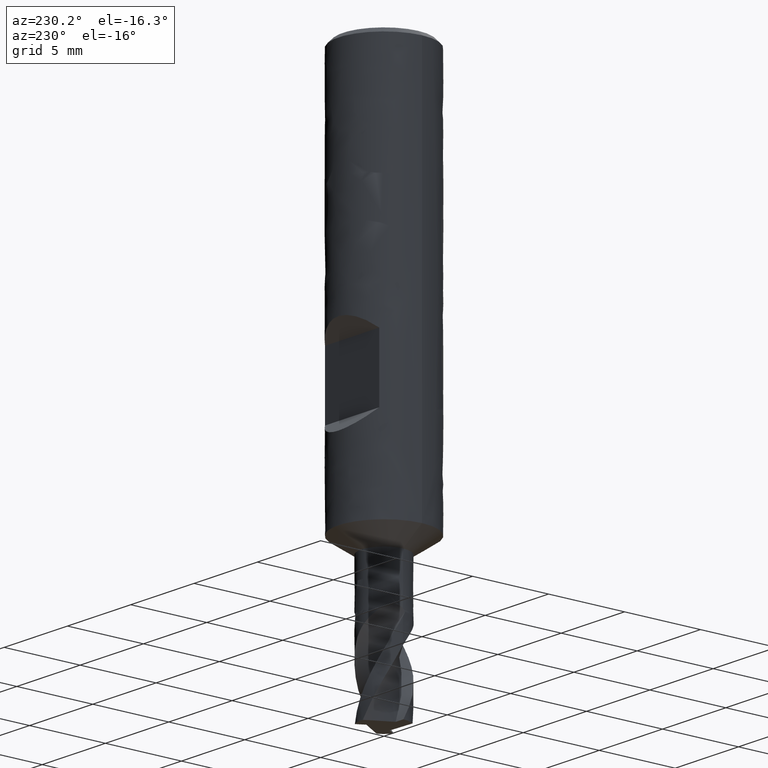
[diagram: clean part render]
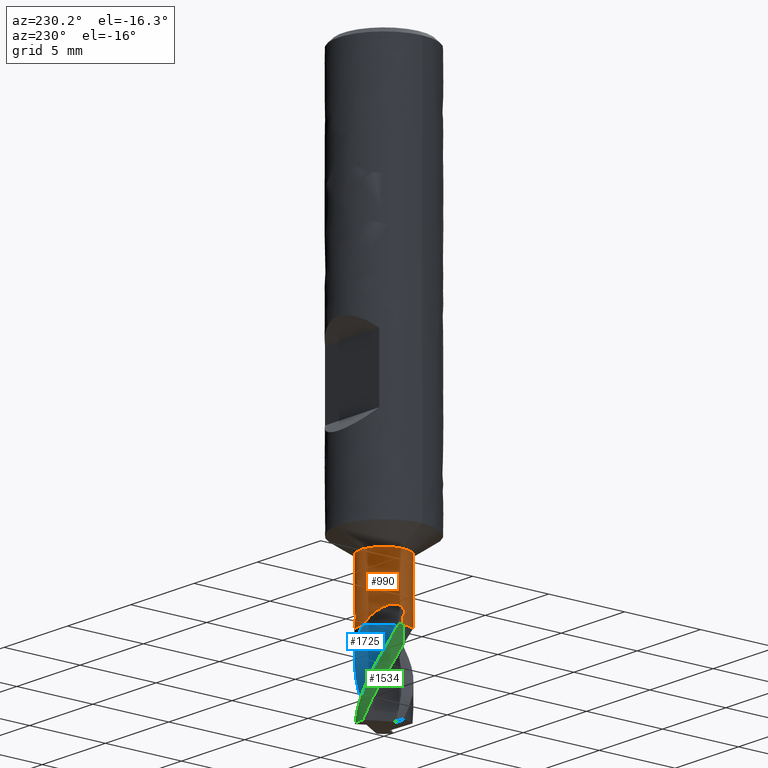
[diagram: same view with three faces highlighted in distinct colors, each labeled with its STEP entity id]
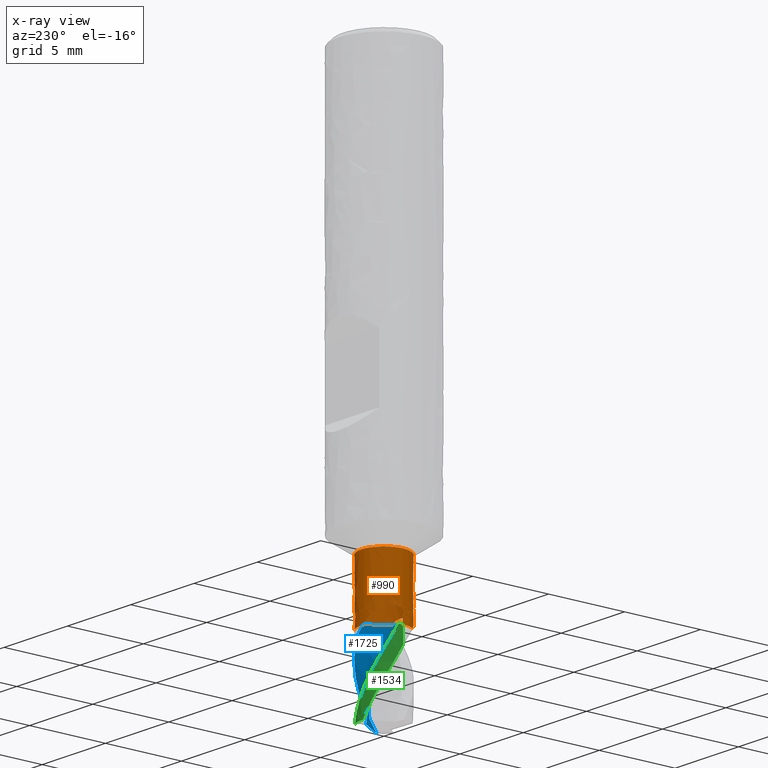
[diagram: x-ray of the same camera — body ghosted, the three highlighted faces saturated]
A machine part, auxiliary view with three faces highlighted in distinct colors.
The next image is the same camera in x-ray (body ghosted, the three faces saturated) — at least one of them is partly hidden behind the body in this view.
Their STEP definitions:

[orange] entity #990 — the highlighted face is a freeform B-spline surface patch.
#75 = VERTEX_POINT('', #76);
#76 = CARTESIAN_POINT('', (-1.5, 1.74512168878498E-15, -27.));
#90 = EDGE_CURVE('', #75, #75, #91, .T.);
#91 = CIRCLE('', #92, 1.5);
#92 = AXIS2_PLACEMENT_3D('', #93, #94, #95);
#93 = CARTESIAN_POINT('', (1.01233785329675E-31, 1.65327317884893E-15, -27.));
#94 = DIRECTION('', (3.74939945665464E-33, 6.12323399573677E-17, -1.));
#95 = DIRECTION('', (-1., 6.12323399573677E-17, 0.));
#420 = VERTEX_POINT('', #421);
#421 = CARTESIAN_POINT('', (1.36022073999418, -0.632297033434184, -31.));
#430 = VERTEX_POINT('', #431);
#431 = CARTESIAN_POINT('', (0.637851164146992, 1.35762509272492, -30.3327850160779));
#440 = EDGE_CURVE('', #441, #430, #443, .T.);
#441 = VERTEX_POINT('', #442);
#442 = CARTESIAN_POINT('', (1.08651737666349, 1.0341566565121, -30.));
#443 = B_SPLINE_CURVE_WITH_KNOTS('', 3, (#444, #445, #446, #447, #448, #449, #450, #451, #452, #453, #454, #455, #456, #457, #458, #459, #460, #461, #462, #463, #464, #465, #466, #467, #468), .UNSPECIFIED., .F., .U., (4, 3, 3, 3, 3, 3, 3, 3, 4), (0., 0.0877116151481286, 0.175259485587452, 0.262620735532497, 0.349794294163631, 0.436816400305931, 0.523762326491306, 0.610721918286676, 0.686112963349602), .UNSPECIFIED.);
#444 = CARTESIAN_POINT('', (1.08651737666204, 1.03415665651363, -30.));
#445 = CARTESIAN_POINT('', (1.06636022341526, 1.05533439310578, -30.0000824919297));
#446 = CARTESIAN_POINT('', (1.0455397520811, 1.07596047730442, -30.0016198085905));
#447 = CARTESIAN_POINT('', (1.02431242931333, 1.0958029235014, -30.0048589838145));
#448 = CARTESIAN_POINT('', (1.00312473484086, 1.11560832676434, -30.008092111974));
#449 = CARTESIAN_POINT('', (0.98143935348755, 1.13471635270034, -30.0130399754171));
#450 = CARTESIAN_POINT('', (0.959641017068353, 1.15286127455129, -30.0199116457774));
#451 = CARTESIAN_POINT('', (0.937889146842983, 1.17096751797102, -30.0267686682141));
#452 = CARTESIAN_POINT('', (0.915909639445699, 1.18820851736867, -30.0355856607205));
#453 = CARTESIAN_POINT('', (0.894217875179021, 1.20431490554187, -30.0464507556942));
#454 = CARTESIAN_POINT('', (0.872572714592337, 1.22038668993868, -30.05729250755));
#455 = CARTESIAN_POINT('', (0.851082909145497, 1.2354265361083, -30.0702483606421));
#456 = CARTESIAN_POINT('', (0.830331920041137, 1.24921931723809, -30.0851987604267));
#457 = CARTESIAN_POINT('', (0.809616983026368, 1.26298813524119, -30.1001231858758));
#458 = CARTESIAN_POINT('', (0.789504205322671, 1.27560681570253, -30.1171367749158));
#459 = CARTESIAN_POINT('', (0.770518965610291, 1.28697339663058, -30.1358928126313));
#460 = CARTESIAN_POINT('', (0.751550345752424, 1.29833002714851, -30.1546324311378));
#461 = CARTESIAN_POINT('', (0.733584874538814, 1.30851472348611, -30.1752285036799));
#462 = CARTESIAN_POINT('', (0.71697581525869, 1.31755291367525, -30.1971922275385));
#463 = CARTESIAN_POINT('', (0.700364145471824, 1.32659252442988, -30.2191594035162));
#464 = CARTESIAN_POINT('', (0.685010727015886, 1.3345423460515, -30.2426135279712));
#465 = CARTESIAN_POINT('', (0.671070159144094, 1.34151587448913, -30.2670522150202));
#466 = CARTESIAN_POINT('', (0.658984155071097, 1.34756168939964, -30.2882397357818));
#467 = CARTESIAN_POINT('', (0.647908428082305, 1.35289990199027, -30.3102448647238));
#468 = CARTESIAN_POINT('', (0.637851164146992, 1.35762509272492, -30.3327850160779));
#470 = EDGE_CURVE('', #441, #471, #473, .T.);
#471 = VERTEX_POINT('', #472);
#472 = CARTESIAN_POINT('', (1.08995851975236, 1.03052919668452, -30.));
#473 = CIRCLE('', #474, 1.5);
#474 = AXIS2_PLACEMENT_3D('', #475, #476, #477);
#475 = CARTESIAN_POINT('', (1.12481983699639E-31, 1.83697019872103E-15, -30.));
#476 = DIRECTION('', (3.74939945665464E-33, 6.12323399573677E-17, -1.));
#477 = DIRECTION('', (-1., 6.12323399573677E-17, 0.));
#479 = EDGE_CURVE('', #420, #471, #480, .T.);
#480 = B_SPLINE_CURVE_WITH_KNOTS('', 3, (#481, #482, #483, #484, #485, #486, #487, #488, #489, #490, #491, #492, #493, #494, #495, #496, #497, #498, #499, #500, #501, #502, #503, #504, #505, #506, #507, #508, #509, #510, #511, #512, #513, #514, #515, #516, #517, #518, #519, #520, #521, #522, #523, #524, #525, #526, #527, #528, #529), .UNSPECIFIED., .F., .U., (4, 3, 3, 3, 3, 3, 3, 3, 3, 3, 3, 3, 3, 3, 3, 3, 4), (5.93182391505246, 5.98055289472466, 6.178288634914, 6.37600428610593, 6.57366056951842, 6.77121452740443, 6.7885249363898, 6.98886393612993, 7.12168933289993, 7.25450969512237, 7.38731130558466, 7.52007420166525, 7.65276893078552, 7.78535173893475, 7.87336091418774, 7.93188912167936, 8.02089688242874), .UNSPECIFIED.);
#481 = CARTESIAN_POINT('', (1.36022073999418, -0.632297033434184, -31.));
#482 = CARTESIAN_POINT('', (1.36517837875582, -0.621631977758768, -30.9887967310919));
#483 = CARTESIAN_POINT('', (1.37003065050286, -0.610865258098542, -30.9776338202495));
#484 = CARTESIAN_POINT('', (1.37476943313114, -0.600007504726623, -30.9665213065918));
#485 = CARTESIAN_POINT('', (1.39399878488248, -0.555948180804144, -30.9214281991994));
#486 = CARTESIAN_POINT('', (1.41140573034488, -0.510278478969455, -30.8770518719947));
#487 = CARTESIAN_POINT('', (1.42669128626447, -0.463197553638868, -30.8335303993883));
#488 = CARTESIAN_POINT('', (1.44197528924531, -0.416121411503193, -30.7900133483537));
#489 = CARTESIAN_POINT('', (1.45516322077789, -0.367555194242264, -30.7472792113617));
#490 = CARTESIAN_POINT('', (1.46595812732796, -0.317752685151663, -30.7054859377749));
#491 = CARTESIAN_POINT('', (1.47674979250778, -0.267965130185117, -30.663705213391));
#492 = CARTESIAN_POINT('', (1.48516984239994, -0.216848158552868, -30.6227860110139));
#493 = CARTESIAN_POINT('', (1.49093051866733, -0.164700299047605, -30.5829324671953));
#494 = CARTESIAN_POINT('', (1.49668821266559, -0.112579436190699, -30.5430995553283));
#495 = CARTESIAN_POINT('', (1.49980085356092, -0.0593150114602786, -30.5042479724233));
#496 = CARTESIAN_POINT('', (1.49999074141514, -0.00527026269407737, -30.4666245046627));
#497 = CARTESIAN_POINT('', (1.50000738009175, -0.00053466177437959, -30.4633277971638));
#498 = CARTESIAN_POINT('', (1.50000161488123, 0.00420741153897672, -30.4600401776972));
#499 = CARTESIAN_POINT('', (1.49997326496345, 0.00895569064304992, -30.4567618374035));
#500 = CARTESIAN_POINT('', (1.49964516213371, 0.0639090708318443, -30.4188205377039));
#501 = CARTESIAN_POINT('', (1.49628571817081, 0.119780846295887, -30.3820599897132));
#502 = CARTESIAN_POINT('', (1.48962476981092, 0.176119405988582, -30.3468304236183));
#503 = CARTESIAN_POINT('', (1.48520853977126, 0.213472051026941, -30.3234731087636));
#504 = CARTESIAN_POINT('', (1.47933514669825, 0.251089404017757, -30.3007519298876));
#505 = CARTESIAN_POINT('', (1.47193183530087, 0.288819445723144, -30.27879920182));
#506 = CARTESIAN_POINT('', (1.4645288045149, 0.326548057327857, -30.2568473058377));
#507 = CARTESIAN_POINT('', (1.45558447042861, 0.36444645275563, -30.2356302002088));
#508 = CARTESIAN_POINT('', (1.44503330610292, 0.402341576590434, -30.2153134274195));
#509 = CARTESIAN_POINT('', (1.43448363140502, 0.440231350339895, -30.1949995229799));
#510 = CARTESIAN_POINT('', (1.42230865140967, 0.478184107579079, -30.1755495999786));
#511 = CARTESIAN_POINT('', (1.40845464032427, 0.515999540841869, -30.157174489405));
#512 = CARTESIAN_POINT('', (1.39460466796605, 0.553803950133549, -30.1388047355515));
#513 = CARTESIAN_POINT('', (1.37904719255905, 0.591549221974664, -30.1214703653326));
#514 = CARTESIAN_POINT('', (1.36174934152041, 0.628998196236473, -30.1054453340054));
#515 = CARTESIAN_POINT('', (1.34446037204402, 0.666427942364382, -30.0894285307125));
#516 = CARTESIAN_POINT('', (1.325387809889, 0.703655764129864, -30.0746783121668));
#517 = CARTESIAN_POINT('', (1.30453799494801, 0.740392206696584, -30.0615576661101));
#518 = CARTESIAN_POINT('', (1.28370576572086, 0.777097664021071, -30.0484480866229));
#519 = CARTESIAN_POINT('', (1.2610301308824, 0.813429010416731, -30.0369225185317));
#520 = CARTESIAN_POINT('', (1.23659472380273, 0.84901913350834, -30.0274680240726));
#521 = CARTESIAN_POINT('', (1.22037437024352, 0.872644047056103, -30.0211920802198));
#522 = CARTESIAN_POINT('', (1.20334502729133, 0.89599271250551, -30.0158170257832));
#523 = CARTESIAN_POINT('', (1.18556642464368, 0.9189299498643, -30.0115242048911));
#524 = CARTESIAN_POINT('', (1.17374322846349, 0.934183761567008, -30.0086693762761));
#525 = CARTESIAN_POINT('', (1.16157525269239, 0.949273489114972, -30.0062902348077));
#526 = CARTESIAN_POINT('', (1.14909123348789, 0.964152133805583, -30.0044485012575));
#527 = CARTESIAN_POINT('', (1.1301059502857, 0.986779084188211, -30.0016476538331));
#528 = CARTESIAN_POINT('', (1.11034179384798, 1.00897044480011, -30.0000834416149));
#529 = CARTESIAN_POINT('', (1.08995851975229, 1.0305291966846, -30.));
#548 = VERTEX_POINT('', #549);
#549 = CARTESIAN_POINT('', (0.958839185865557, 1.15352824657599, -31.));
#555 = EDGE_CURVE('', #430, #548, #556, .T.);
#556 = B_SPLINE_CURVE_WITH_KNOTS('', 3, (#557, #558, #559, #560, #561, #562, #563, #564, #565, #566, #567, #568, #569), .UNSPECIFIED., .F., .U., (4, 3, 3, 3, 4), (0., 0.197140888710732, 0.394258242975622, 0.591362302652624, 0.768501291972744), .UNSPECIFIED.);
#557 = CARTESIAN_POINT('', (0.637851164146992, 1.35762509272492, -30.3327850160779));
#558 = CARTESIAN_POINT('', (0.66736470847637, 1.34375878404406, -30.3898372491278));
#559 = CARTESIAN_POINT('', (0.696434465240904, 1.32892542771145, -30.4468939296165));
#560 = CARTESIAN_POINT('', (0.724987225946729, 1.31316165121209, -30.5039423679636));
#561 = CARTESIAN_POINT('', (0.753536578057792, 1.29739975657371, -30.5609839959358));
#562 = CARTESIAN_POINT('', (0.781572418885783, 1.28070597767198, -30.6180350378292));
#563 = CARTESIAN_POINT('', (0.809030497276849, 1.26311901833358, -30.6750789064091));
#564 = CARTESIAN_POINT('', (0.836486723756713, 1.24553324514836, -30.7321189276631));
#565 = CARTESIAN_POINT('', (0.863373912601014, 1.22704872508473, -30.7891656657986));
#566 = CARTESIAN_POINT('', (0.889625537170045, 1.2077112252583, -30.8462058369382));
#567 = CARTESIAN_POINT('', (0.913218081391558, 1.19033246004745, -30.8974682933425));
#568 = CARTESIAN_POINT('', (0.936304114691881, 1.17225991557649, -30.9487382774055));
#569 = CARTESIAN_POINT('', (0.958839185865557, 1.15352824657599, -31.));
#589 = VERTEX_POINT('', #590);
#590 = CARTESIAN_POINT('', (-0.132525076305562, 1.49413423230653, -31.));
#599 = VERTEX_POINT('', #600);
#600 = CARTESIAN_POINT('', (-1.49466340118848, -0.126417234377682, -30.3327850160779));
#609 = EDGE_CURVE('', #599, #610, #612, .T.);
#610 = VERTEX_POINT('', #611);
#611 = CARTESIAN_POINT('', (-1.5, 1.93845108511312E-15, -30.1573086454437));
#612 = B_SPLINE_CURVE_WITH_KNOTS('', 3, (#613, #614, #615, #616, #617, #618, #619, #620, #621, #622), .UNSPECIFIED., .F., .U., (4, 3, 3, 4), (0., 0.0882864205741478, 0.176734473270801, 0.217324273060061), .UNSPECIFIED.);
#613 = CARTESIAN_POINT('', (-1.49466340118848, -0.126417234377682, -30.3327850160779));
#614 = CARTESIAN_POINT('', (-1.49576008244812, -0.113450890432354, -30.3063894503898));
#615 = CARTESIAN_POINT('', (-1.49682856778338, -0.0988466259854903, -30.2807173592617));
#616 = CARTESIAN_POINT('', (-1.49772682723394, -0.082549082270865, -30.2562298548581));
#617 = CARTESIAN_POINT('', (-1.49862673119087, -0.0662217015035525, -30.2316975194682));
#618 = CARTESIAN_POINT('', (-1.49935901652126, -0.0481069721229595, -30.2082384510113));
#619 = CARTESIAN_POINT('', (-1.49973267225682, -0.0283180466382013, -30.1863869641262));
#620 = CARTESIAN_POINT('', (-1.49990414704948, -0.0192366875920535, -30.1763590726044));
#621 = CARTESIAN_POINT('', (-1.5, -0.00978820723709447, -30.166649421278));
#622 = CARTESIAN_POINT('', (-1.5, 1.95926776682484E-15, -30.1573086454437));
#624 = EDGE_CURVE('', #625, #610, #627, .T.);
#625 = VERTEX_POINT('', #626);
#626 = CARTESIAN_POINT('', (-1.438864624364, 0.423873321587765, -30.));
#627 = B_SPLINE_CURVE_WITH_KNOTS('', 3, (#628, #629, #630, #631, #632, #633, #634, #635, #636, #637, #638, #639, #640, #641, #642, #643, #644, #645, #646), .UNSPECIFIED., .F., .U., (4, 3, 3, 3, 3, 3, 4), (0., 0.0873715327168836, 0.174583582441547, 0.261628330211301, 0.348523752452851, 0.435323320112903, 0.468839241960868), .UNSPECIFIED.);
#628 = CARTESIAN_POINT('', (-1.43886462436399, 0.423873321587794, -30.));
#629 = CARTESIAN_POINT('', (-1.44709447200277, 0.395936586652479, -30.0000821720854));
#630 = CARTESIAN_POINT('', (-1.45452114556435, 0.367703833638553, -30.0016078787105));
#631 = CARTESIAN_POINT('', (-1.46107276887943, 0.339509004356293, -30.0048213094219));
#632 = CARTESIAN_POINT('', (-1.46761243323651, 0.31136564030074, -30.0080288745209));
#633 = CARTESIAN_POINT('', (-1.47330595498263, 0.283139922242644, -30.0129368912773));
#634 = CARTESIAN_POINT('', (-1.4781157273912, 0.255291786861227, -30.0197524667693));
#635 = CARTESIAN_POINT('', (-1.48291627304349, 0.227497073541379, -30.0265549677021));
#636 = CARTESIAN_POINT('', (-1.48685985291336, 0.199933631095757, -30.0353013153343));
#637 = CARTESIAN_POINT('', (-1.48996990067306, 0.173175330484241, -30.0460802901163));
#638 = CARTESIAN_POINT('', (-1.4930746131364, 0.146462933818396, -30.0568407735343));
#639 = CARTESIAN_POINT('', (-1.49536764414416, 0.120392064004039, -30.069700616884));
#640 = CARTESIAN_POINT('', (-1.49695235469523, 0.0955701196630325, -30.0845444422031));
#641 = CARTESIAN_POINT('', (-1.4985353171477, 0.0707755564777347, -30.0993718932573));
#642 = CARTESIAN_POINT('', (-1.49942463445355, 0.0470658658062925, -30.1162794067218));
#643 = CARTESIAN_POINT('', (-1.4997925537192, 0.0249458575409547, -30.1349261037));
#644 = CARTESIAN_POINT('', (-1.49993461840553, 0.0164046575294412, -30.1421261538327));
#645 = CARTESIAN_POINT('', (-1.5, 0.00808234557680908, -30.1495957541634));
#646 = CARTESIAN_POINT('', (-1.5, 1.95926776682484E-15, -30.1573086454437));
#648 = EDGE_CURVE('', #625, #649, #651, .T.);
#649 = VERTEX_POINT('', #650);
#650 = CARTESIAN_POINT('', (-1.43744372354654, 0.428667168834574, -30.));
#651 = CIRCLE('', #652, 1.5);
#652 = AXIS2_PLACEMENT_3D('', #653, #654, #655);
#653 = CARTESIAN_POINT('', (1.12481983699639E-31, 1.83697019872103E-15, -30.));
#654 = DIRECTION('', (3.74939945665464E-33, 6.12323399573677E-17, -1.));
#655 = DIRECTION('', (-1., 6.12323399573677E-17, 0.));
#657 = EDGE_CURVE('', #589, #649, #658, .T.);
#658 = B_SPLINE_CURVE_WITH_KNOTS('', 3, (#659, #660, #661, #662, #663, #664, #665, #666, #667, #668, #669, #670, #671, #672, #673, #674, #675, #676, #677, #678, #679, #680, #681, #682, #683, #684, #685, #686, #687, #688, #689, #690, #691, #692, #693, #694, #695, #696, #697, #698, #699, #700, #701, #702, #703, #704), .UNSPECIFIED., .F., .U., (4, 3, 3, 3, 3, 3, 3, 3, 3, 3, 3, 3, 3, 3, 3, 4), (5.93192917428079, 5.96404125952041, 6.1631267777314, 6.36230406094339, 6.56154907130675, 6.76084067006444, 6.96013880981722, 7.09247784788547, 7.22479050322806, 7.35706029425465, 7.48926449726281, 7.62137141338104, 7.75333659528979, 7.84106248077511, 7.92869879555475, 8.02099750391159), .UNSPECIFIED.);
#659 = CARTESIAN_POINT('', (-0.132525076305562, 1.49413423230653, -31.));
#660 = CARTESIAN_POINT('', (-0.140245205009723, 1.493449480814, -30.9926171176052));
#661 = CARTESIAN_POINT('', (-0.147980807411243, 1.49270302759867, -30.9852516444915));
#662 = CARTESIAN_POINT('', (-0.155726405785692, 1.49189452929545, -30.9779080581342));
#663 = CARTESIAN_POINT('', (-0.203746845901147, 1.48688207674161, -30.932379974718));
#664 = CARTESIAN_POINT('', (-0.252277275596175, 1.47946910201428, -30.8875738915931));
#665 = CARTESIAN_POINT('', (-0.300991614024742, 1.46949108479357, -30.8436279460139));
#666 = CARTESIAN_POINT('', (-0.34972840647887, 1.45950846837966, -30.7996617443168));
#667 = CARTESIAN_POINT('', (-0.398732059284495, 1.44694070069639, -30.7564844897652));
#668 = CARTESIAN_POINT('', (-0.44762900100852, 1.43165228929937, -30.7142552578536));
#669 = CARTESIAN_POINT('', (-0.496542569380524, 1.41635867931476, -30.6720116665454));
#670 = CARTESIAN_POINT('', (-0.545441833841273, 1.39831325141908, -30.6306362917491));
#671 = CARTESIAN_POINT('', (-0.593917179437388, 1.37741147954021, -30.5903348093258));
#672 = CARTESIAN_POINT('', (-0.642403859764103, 1.35650482031189, -30.5500239034225));
#673 = CARTESIAN_POINT('', (-0.690572818100659, 1.33269352726222, -30.5107025567543));
#674 = CARTESIAN_POINT('', (-0.737961933206138, 1.30591431002906, -30.4726215772786));
#675 = CARTESIAN_POINT('', (-0.785352603680588, 1.27913421386908, -30.4345393479383));
#676 = CARTESIAN_POINT('', (-0.832080586962659, 1.24931874502824, -30.3975998256939));
#677 = CARTESIAN_POINT('', (-0.877635278390454, 1.21645234930289, -30.3621332849714));
#678 = CARTESIAN_POINT('', (-0.907884753124784, 1.19462822590435, -30.3385825991062));
#679 = CARTESIAN_POINT('', (-0.93766407314366, 1.17142616314853, -30.3156454129066));
#680 = CARTESIAN_POINT('', (-0.966809861766023, 1.14685600281464, -30.293446581512));
#681 = CARTESIAN_POINT('', (-0.995949839968751, 1.12229074071643, -30.2712521756119));
#682 = CARTESIAN_POINT('', (-1.02449890819508, 1.09632187106248, -30.2497631246489));
#683 = CARTESIAN_POINT('', (-1.05227998429789, 1.06897466510953, -30.2291348861879));
#684 = CARTESIAN_POINT('', (-1.08005206037858, 1.04163631862111, -30.2085133304991));
#685 = CARTESIAN_POINT('', (-1.10710298344215, 1.01287434019167, -30.1887169495112));
#686 = CARTESIAN_POINT('', (-1.13323910919276, 0.982735529731169, -30.1699425788865));
#687 = CARTESIAN_POINT('', (-1.15936227494182, 0.952611664065242, -30.1511775178234));
#688 = CARTESIAN_POINT('', (-1.18462258055788, 0.921052453540942, -30.1333957772059));
#689 = CARTESIAN_POINT('', (-1.20880630805224, 0.888136988089739, -30.116851471638));
#690 = CARTESIAN_POINT('', (-1.23297223914088, 0.855245744586036, -30.1003193407514));
#691 = CARTESIAN_POINT('', (-1.25611984338192, 0.820921096481663, -30.0849825488275));
#692 = CARTESIAN_POINT('', (-1.27801131348549, 0.785294264975293, -30.0711756704775));
#693 = CARTESIAN_POINT('', (-1.29987929677777, 0.749705656606273, -30.0573836051822));
#694 = CARTESIAN_POINT('', (-1.32055731992279, 0.712710098899681, -30.0450761047566));
#695 = CARTESIAN_POINT('', (-1.33978011943956, 0.674528896011512, -30.03470024196));
#696 = CARTESIAN_POINT('', (-1.3525587712379, 0.649147353821275, -30.0278027274919));
#697 = CARTESIAN_POINT('', (-1.36472002813402, 0.623192477818258, -30.021746676166));
#698 = CARTESIAN_POINT('', (-1.37617919451841, 0.5967669767796, -30.0166996243329));
#699 = CARTESIAN_POINT('', (-1.38762666075736, 0.570368456953646, -30.0116577256879));
#700 = CARTESIAN_POINT('', (-1.39839641704519, 0.543445210993193, -30.0076126255564));
#701 = CARTESIAN_POINT('', (-1.40840037418953, 0.516147639714453, -30.0047647284416));
#702 = CARTESIAN_POINT('', (-1.41893655802155, 0.487397793527494, -30.0017653185979));
#703 = CARTESIAN_POINT('', (-1.42865144142971, 0.458150207572652, -30.0000865267614));
#704 = CARTESIAN_POINT('', (-1.43744372354651, 0.428667168834678, -30.));
#731 = VERTEX_POINT('', #732);
#732 = CARTESIAN_POINT('', (-1.5, 1.96275291108303E-15, -30.554187582078));
#748 = EDGE_CURVE('', #599, #731, #749, .T.);
#749 = B_SPLINE_CURVE_WITH_KNOTS('', 3, (#750, #751, #752, #753, #754, #755, #756), .UNSPECIFIED., .F., .U., (4, 3, 4), (0., 0.196717317091002, 0.255017488445792), .UNSPECIFIED.);
#750 = CARTESIAN_POINT('', (-1.49466340118848, -0.126417234377682, -30.3327850160779));
#751 = CARTESIAN_POINT('', (-1.49740569307743, -0.0939944136920894, -30.3897146682319));
#752 = CARTESIAN_POINT('', (-1.49909315264981, -0.0614728420411073, -30.4466487364571));
#753 = CARTESIAN_POINT('', (-1.4997209212686, -0.0289336881386932, -30.5035746016702));
#754 = CARTESIAN_POINT('', (-1.49990697005468, -0.0192902145680717, -30.5204454483528));
#755 = CARTESIAN_POINT('', (-1.5, -0.00964483826556952, -30.537316489663));
#756 = CARTESIAN_POINT('', (-1.5, 2.09459189525727E-15, -30.554187582078));
#776 = VERTEX_POINT('', #777);
#777 = CARTESIAN_POINT('', (-1.22769566368865, -0.86183719887231, -31.));
#786 = VERTEX_POINT('', #787);
#787 = CARTESIAN_POINT('', (0.856812237041487, -1.23120785834723, -30.3327850160779));
#796 = EDGE_CURVE('', #786, #797, #799, .T.);
#797 = VERTEX_POINT('', #798);
#798 = CARTESIAN_POINT('', (0.352347247700506, -1.45802997809986, -30.));
#799 = B_SPLINE_CURVE_WITH_KNOTS('', 3, (#800, #801, #802, #803, #804, #805, #806, #807, #808, #809, #810, #811, #812, #813, #814, #815, #816, #817, #818, #819, #820, #821, #822, #823, #824, #825, #826, #827, #828, #829, #830), .UNSPECIFIED., .F., .U., (4, 3, 3, 3, 3, 3, 3, 3, 3, 3, 4), (0., 0.0883169953595423, 0.176825850482241, 0.265466813793113, 0.324275181294038, 0.383042246268928, 0.441740210368148, 0.500350745622633, 0.55886691907766, 0.617291404635608, 0.686300846038629), .UNSPECIFIED.);
#800 = CARTESIAN_POINT('', (0.856812237041487, -1.23120785834723, -30.3327850160779));
#801 = CARTESIAN_POINT('', (0.846127695499721, -1.23864335827366, -30.3063803092473));
#802 = CARTESIAN_POINT('', (0.834009567218648, -1.24687396386799, -30.2806995534049));
#803 = CARTESIAN_POINT('', (0.820338786365209, -1.25580423457832, -30.2562043570223));
#804 = CARTESIAN_POINT('', (0.80663830711945, -1.26475390540091, -30.2316559472965));
#805 = CARTESIAN_POINT('', (0.791303773921801, -1.2744531207934, -30.2081823686125));
#806 = CARTESIAN_POINT('', (0.774337796277646, -1.28467932857031, -30.1863190560424));
#807 = CARTESIAN_POINT('', (0.757346495239985, -1.29492079997006, -30.1644231103237));
#808 = CARTESIAN_POINT('', (0.738608367609988, -1.3057532394921, -30.1440161217088));
#809 = CARTESIAN_POINT('', (0.718324942848315, -1.31681786002543, -30.1255992452448));
#810 = CARTESIAN_POINT('', (0.704868014437254, -1.32415862265118, -30.1133806682026));
#811 = CARTESIAN_POINT('', (0.690684782435241, -1.33162658557789, -30.1019878917442));
#812 = CARTESIAN_POINT('', (0.675885033551184, -1.33909649444001, -30.0915266663052));
#813 = CARTESIAN_POINT('', (0.661095678885493, -1.34656115700609, -30.0810727880356));
#814 = CARTESIAN_POINT('', (0.645644483822616, -1.35405057485098, -30.0715162470422));
#815 = CARTESIAN_POINT('', (0.629670302207475, -1.36143869142828, -30.0629156060954));
#816 = CARTESIAN_POINT('', (0.613714903731125, -1.36881812073618, -30.054325078157));
#817 = CARTESIAN_POINT('', (0.597190010166861, -1.37611833643557, -30.0466614653075));
#818 = CARTESIAN_POINT('', (0.580246912510008, -1.38322576628785, -30.0399351163428));
#819 = CARTESIAN_POINT('', (0.5633290510854, -1.39032260983801, -30.0332187860717));
#820 = CARTESIAN_POINT('', (0.545947736764768, -1.3972467889621, -30.0274171467351));
#821 = CARTESIAN_POINT('', (0.52825083821377, -1.40390564210222, -30.0225010738712));
#822 = CARTESIAN_POINT('', (0.510582431318493, -1.41055377462084, -30.0175929157872));
#823 = CARTESIAN_POINT('', (0.492556365230156, -1.41695387725001, -30.0135542849522));
#824 = CARTESIAN_POINT('', (0.474306368841675, -1.42303670665134, -30.0103298311574));
#825 = CARTESIAN_POINT('', (0.456084968030993, -1.42911000498111, -30.0071104296989));
#826 = CARTESIAN_POINT('', (0.437601879442226, -1.43488014831586, -30.0046949293103));
#827 = CARTESIAN_POINT('', (0.418971904924572, -1.44029946291905, -30.0030144458798));
#828 = CARTESIAN_POINT('', (0.39696667676487, -1.44670061253947, -30.0010295037496));
#829 = CARTESIAN_POINT('', (0.374706677443347, -1.45262660255314, -30.0000649027153));
#830 = CARTESIAN_POINT('', (0.352347247700553, -1.45802997809985, -30.));
#832 = EDGE_CURVE('', #797, #833, #835, .T.);
#833 = VERTEX_POINT('', #834);
#834 = CARTESIAN_POINT('', (0.347485203794181, -1.45919636551909, -30.));
#835 = CIRCLE('', #836, 1.5);
#836 = AXIS2_PLACEMENT_3D('', #837, #838, #839);
#837 = CARTESIAN_POINT('', (1.12481983699639E-31, 1.83697019872103E-15, -30.));
#838 = DIRECTION('', (3.74939945665464E-33, 6.12323399573677E-17, -1.));
#839 = DIRECTION('', (-1., 6.12323399573677E-17, 0.));
#841 = EDGE_CURVE('', #833, #776, #842, .T.);
#842 = B_SPLINE_CURVE_WITH_KNOTS('', 3, (#843, #844, #845, #846, #847, #848, #849, #850, #851, #852, #853, #854, #855, #856, #857, #858, #859, #860, #861, #862, #863, #864, #865, #866, #867, #868, #869, #870, #871, #872, #873, #874, #875, #876, #877, #878, #879, #880, #881, #882, #883, #884, #885, #886, #887, #888, #889, #890, #891, #892, #893, #894, #895, #896, #897), .UNSPECIFIED., .F., .U., (4, 3, 3, 3, 3, 3, 3, 3, 3, 3, 3, 3, 3, 3, 3, 3, 3, 3, 4), (0., 0.0873098819671224, 0.174429990955737, 0.261413096906244, 0.348299322303815, 0.365578036228584, 0.497316319210233, 0.628764562644849, 0.760006148242428, 0.891098992126548, 1.0220841087366, 1.15299117954395, 1.28384211922006, 1.41465336830612, 1.54543944364269, 1.67621293450469, 1.8069824777425, 2.00270210809832, 2.08926978266829), .UNSPECIFIED.);
#843 = CARTESIAN_POINT('', (0.34748520379416, -1.45919636551909, -30.));
#844 = CARTESIAN_POINT('', (0.319173701884916, -1.46593831488459, -30.0000818499138));
#845 = CARTESIAN_POINT('', (0.290633447088253, -1.47186001600037, -30.0015885278313));
#846 = CARTESIAN_POINT('', (0.262101548413032, -1.47692341653841, -30.0042893525185));
#847 = CARTESIAN_POINT('', (0.233631665437205, -1.4819758114883, -30.0069843068101));
#848 = CARTESIAN_POINT('', (0.205096167470002, -1.4861880813694, -30.0108742010377));
#849 = CARTESIAN_POINT('', (0.17666935499923, -1.4895596460042, -30.0157601599697));
#850 = CARTESIAN_POINT('', (0.148287245866384, -1.49292590859561, -30.0206384353575));
#851 = CARTESIAN_POINT('', (0.119954799713605, -1.49546192999319, -30.0265194265972));
#852 = CARTESIAN_POINT('', (0.0918023888354259, -1.49718813827926, -30.0332377135903));
#853 = CARTESIAN_POINT('', (0.0636813337142357, -1.49891242393895, -30.0399485178503));
#854 = CARTESIAN_POINT('', (0.0356926137499149, -1.49983214852481, -30.0475060285944));
#855 = CARTESIAN_POINT('', (0.00793626568327004, -1.49997900508207, -30.0557743640458));
#856 = CARTESIAN_POINT('', (0.00241647246351216, -1.50000820985451, -30.0574186546366));
#857 = CARTESIAN_POINT('', (-0.00309516364841277, -1.50000690057001, -30.0590914017925));
#858 = CARTESIAN_POINT('', (-0.00859796300276434, -1.49997535814166, -30.0607916564781));
#859 = CARTESIAN_POINT('', (-0.0505530148481235, -1.49973486886856, -30.0737549264232));
#860 = CARTESIAN_POINT('', (-0.0920548212416262, -1.49773281104133, -30.0883315876699));
#861 = CARTESIAN_POINT('', (-0.13285314324084, -1.49410509748512, -30.1041640604555));
#862 = CARTESIAN_POINT('', (-0.17356164224734, -1.49048537082819, -30.1199616759231));
#863 = CARTESIAN_POINT('', (-0.213671583816307, -1.4852394774655, -30.1370499350771));
#864 = CARTESIAN_POINT('', (-0.25299798949026, -1.47851006669345, -30.1551606450113));
#865 = CARTESIAN_POINT('', (-0.292262567712414, -1.47179123564038, -30.1732428819889));
#866 = CARTESIAN_POINT('', (-0.330826327928977, -1.4635805916852, -30.1923819529958));
#867 = CARTESIAN_POINT('', (-0.368546335872952, -1.45401980671331, -30.2123721875923));
#868 = CARTESIAN_POINT('', (-0.406223594115392, -1.44446985738877, -30.2323397663993));
#869 = CARTESIAN_POINT('', (-0.443123951505112, -1.43355682982458, -30.2531914285984));
#870 = CARTESIAN_POINT('', (-0.479133483622752, -1.42141869442875, -30.2747659689171));
#871 = CARTESIAN_POINT('', (-0.515113424432274, -1.40929053370582, -30.2963227800726));
#872 = CARTESIAN_POINT('', (-0.550257564721378, -1.39592151996963, -30.3186336499485));
#873 = CARTESIAN_POINT('', (-0.584473279359743, -1.3814452525216, -30.3415698022617));
#874 = CARTESIAN_POINT('', (-0.618668607003134, -1.36697761057196, -30.3644922883625));
#875 = CARTESIAN_POINT('', (-0.65198139478304, -1.35138528825484, -30.3880694988824));
#876 = CARTESIAN_POINT('', (-0.684335506590782, -1.33479770542923, -30.4121970145108));
#877 = CARTESIAN_POINT('', (-0.716675745405376, -1.31821723512842, -30.4363141845961));
#878 = CARTESIAN_POINT('', (-0.748095920309973, -1.30062312232495, -30.4610094636894));
#879 = CARTESIAN_POINT('', (-0.778533234320002, -1.28214117906697, -30.4861973302955));
#880 = CARTESIAN_POINT('', (-0.808961315878546, -1.26366484187673, -30.5113775567479));
#881 = CARTESIAN_POINT('', (-0.838439133946917, -1.24428188687807, -30.5370768090554));
#882 = CARTESIAN_POINT('', (-0.86691536330726, -1.2241150897125, -30.5632243068515));
#883 = CARTESIAN_POINT('', (-0.895386112607826, -1.20395217351209, -30.5893667727366));
#884 = CARTESIAN_POINT('', (-0.922883350574028, -1.18298631234789, -30.615981790646));
#885 = CARTESIAN_POINT('', (-0.94936918173482, -1.1613346446108, -30.6430051381426));
#886 = CARTESIAN_POINT('', (-0.975852464380657, -1.13968506023664, -30.6700258854033));
#887 = CARTESIAN_POINT('', (-1.00134776665189, -1.11733089035276, -30.6974785584354));
#888 = CARTESIAN_POINT('', (-1.02582624701551, -1.09438590585532, -30.7253087799815));
#889 = CARTESIAN_POINT('', (-1.05030398845384, -1.07144161399196, -30.7531381614241));
#890 = CARTESIAN_POINT('', (-1.07378469839424, -1.04788810562785, -30.7813674544984));
#891 = CARTESIAN_POINT('', (-1.09624759198798, -1.0238365187182, -30.8099509183374));
#892 = CARTESIAN_POINT('', (-1.12986726459702, -0.987839087031334, -30.8527311012329));
#893 = CARTESIAN_POINT('', (-1.16124956088221, -0.950678260443996, -30.8963637715545));
#894 = CARTESIAN_POINT('', (-1.19036532692678, -0.912704984346252, -30.9407095040775));
#895 = CARTESIAN_POINT('', (-1.20324336146639, -0.895909233191353, -30.9603238214285));
#896 = CARTESIAN_POINT('', (-1.21569107171452, -0.878937859565861, -30.9800972451408));
#897 = CARTESIAN_POINT('', (-1.22769566368865, -0.86183719887231, -31.));
#916 = VERTEX_POINT('', #917);
#917 = CARTESIAN_POINT('', (0.519565172584948, -1.40714321639155, -31.));
#923 = EDGE_CURVE('', #786, #916, #924, .T.);
#924 = B_SPLINE_CURVE_WITH_KNOTS('', 3, (#925, #926, #927, #928, #929, #930, #931, #932, #933, #934, #935, #936, #937), .UNSPECIFIED., .F., .U., (4, 3, 3, 3, 4), (0., 0.196932297197727, 0.393841761294688, 0.590738371735082, 0.768501381046993), .UNSPECIFIED.);
#925 = CARTESIAN_POINT('', (0.856812237041487, -1.23120785834723, -30.3327850160779));
#926 = CARTESIAN_POINT('', (0.83007520927412, -1.24981447494562, -30.3897768831039));
#927 = CARTESIAN_POINT('', (0.802723896670824, -1.26755506887632, -30.4467731821043));
#928 = CARTESIAN_POINT('', (0.774826397142138, -1.28438469871442, -30.5037612582408));
#929 = CARTESIAN_POINT('', (0.746932132158659, -1.30121237725942, -30.5607427269568));
#930 = CARTESIAN_POINT('', (0.71848867672431, -1.31713136285647, -30.6177335738656));
#931 = CARTESIAN_POINT('', (0.689561490804879, -1.3321054576868, -30.6747172817128));
#932 = CARTESIAN_POINT('', (0.660636193164993, -1.34707857505332, -30.7316972698352));
#933 = CARTESIAN_POINT('', (0.631217991138849, -1.36111156716611, -30.7886839531372));
#934 = CARTESIAN_POINT('', (0.601379541293025, -1.37416980294074, -30.8456640858407));
#935 = CARTESIAN_POINT('', (0.574440669029391, -1.38595909317997, -30.8971071240815));
#936 = CARTESIAN_POINT('', (0.547151649060864, -1.39695735027341, -30.9485576941254));
#937 = CARTESIAN_POINT('', (0.519565172584948, -1.40714321639155, -31.));
#957 = VERTEX_POINT('', #958);
#958 = CARTESIAN_POINT('', (-1.5, 1.99005104861445E-15, -31.));
#965 = EDGE_CURVE('', #731, #957, #966, .T.);
#966 = LINE('', #967, #968);
#967 = CARTESIAN_POINT('', (-1.5, 1.96275291108303E-15, -30.554187582078));
#968 = VECTOR('', #969, 0.445812417922042);
#969 = DIRECTION('', (0., 2.72981375314186E-17, -0.445812417922042));
#990 = ADVANCED_FACE('', (#991), #1036, .T.);
#991 = FACE_OUTER_BOUND('', #992, .T.);
#992 = EDGE_LOOP('', (#993, #1000, #1001, #1002, #1003, #1004, #1011, #1012, #1013, #1014, #1015, #1022, #1023, #1024, #1025, #1031, #1032, #1033, #1034, #1035));
#993 = ORIENTED_EDGE('', *, *, #994, .F.);
#994 = EDGE_CURVE('', #776, #957, #995, .T.);
#995 = CIRCLE('', #996, 1.5);
#996 = AXIS2_PLACEMENT_3D('', #997, #998, #999);
#997 = CARTESIAN_POINT('', (1.16231383156294E-31, 1.8982025386784E-15, -31.));
#998 = DIRECTION('', (3.74939945665464E-33, 6.12323399573677E-17, -1.));
#999 = DIRECTION('', (-1., 6.12323399573677E-17, 0.));
#1000 = ORIENTED_EDGE('', *, *, #841, .F.);
#1001 = ORIENTED_EDGE('', *, *, #832, .F.);
#1002 = ORIENTED_EDGE('', *, *, #796, .F.);
#1003 = ORIENTED_EDGE('', *, *, #923, .T.);
#1004 = ORIENTED_EDGE('', *, *, #1005, .F.);
#1005 = EDGE_CURVE('', #420, #916, #1006, .T.);
#1006 = CIRCLE('', #1007, 1.5);
#1007 = AXIS2_PLACEMENT_3D('', #1008, #1009, #1010);
#1008 = CARTESIAN_POINT('', (1.16231383156294E-31, 1.8982025386784E-15, -31.));
#1009 = DIRECTION('', (3.74939945665464E-33, 6.12323399573677E-17, -1.));
#1010 = DIRECTION('', (-1., 6.12323399573677E-17, 0.));
#1011 = ORIENTED_EDGE('', *, *, #479, .T.);
#1012 = ORIENTED_EDGE('', *, *, #470, .F.);
#1013 = ORIENTED_EDGE('', *, *, #440, .T.);
#1014 = ORIENTED_EDGE('', *, *, #555, .T.);
#1015 = ORIENTED_EDGE('', *, *, #1016, .F.);
#1016 = EDGE_CURVE('', #589, #548, #1017, .T.);
#1017 = CIRCLE('', #1018, 1.5);
#1018 = AXIS2_PLACEMENT_3D('', #1019, #1020, #1021);
#1019 = CARTESIAN_POINT('', (1.16231383156294E-31, 1.8982025386784E-15, -31.));
#1020 = DIRECTION('', (3.74939945665464E-33, 6.12323399573677E-17, -1.));
#1021 = DIRECTION('', (-1., 6.12323399573677E-17, 0.));
#1022 = ORIENTED_EDGE('', *, *, #657, .T.);
#1023 = ORIENTED_EDGE('', *, *, #648, .F.);
#1024 = ORIENTED_EDGE('', *, *, #624, .T.);
#1025 = ORIENTED_EDGE('', *, *, #1026, .F.);
#1026 = EDGE_CURVE('', #75, #610, #1027, .T.);
#1027 = LINE('', #1028, #1029);
#1028 = CARTESIAN_POINT('', (-1.5, 1.74512168878498E-15, -27.));
#1029 = VECTOR('', #1030, 3.15730864544366);
#1030 = DIRECTION('', (0., 1.93329396328142E-16, -3.15730864544366));
#1031 = ORIENTED_EDGE('', *, *, #90, .T.);
#1032 = ORIENTED_EDGE('', *, *, #1026, .T.);
#1033 = ORIENTED_EDGE('', *, *, #609, .F.);
#1034 = ORIENTED_EDGE('', *, *, #748, .T.);
#1035 = ORIENTED_EDGE('', *, *, #965, .T.);
#1036 = (
   BOUNDED_SURFACE ()
   B_SPLINE_SURFACE (2, 1, ((#1037, #1038), (#1039, #1040), (#1041, #1042), (#1043, #1044), (#1045, #1046), (#1047, #1048), (#1049, #1050), (#1051, #1052), (#1053, #1054)), .UNSPECIFIED., .T., .F., .U.)
   B_SPLINE_SURFACE_WITH_KNOTS ((3, 2, 2, 2, 3), (2, 2), (0., 2.35619449019235, 4.71238898038469, 7.06858347057704, 9.42477796076938), (0., 0.444444444444445), .UNSPECIFIED.)
   GEOMETRIC_REPRESENTATION_ITEM ()
   RATIONAL_B_SPLINE_SURFACE (((1., 1.), (0.707106781186548, 0.707106781186548), (1., 1.), (0.707106781186548, 0.707106781186548), (1., 1.), (0.707106781186548, 0.707106781186548), (1., 1.), (0.707106781186548, 0.707106781186548), (1., 1.)))
   REPRESENTATION_ITEM ('')
   SURFACE ()
);
#1037 = CARTESIAN_POINT('', (-1.5, 1.74512168878498E-15, -27.));
#1038 = CARTESIAN_POINT('', (-1.5, 1.99005104861445E-15, -31.));
#1039 = CARTESIAN_POINT('', (-1.5, 1.5, -27.));
#1040 = CARTESIAN_POINT('', (-1.5, 1.5, -31.));
#1041 = CARTESIAN_POINT('', (9.86076131526265E-32, 1.5, -27.));
#1042 = CARTESIAN_POINT('', (1.23259516440783E-31, 1.5, -31.));
#1043 = CARTESIAN_POINT('', (1.5, 1.5, -27.));
#1044 = CARTESIAN_POINT('', (1.5, 1.5, -31.));
#1045 = CARTESIAN_POINT('', (1.5, 1.74512168878498E-15, -27.));
#1046 = CARTESIAN_POINT('', (1.5, 1.99005104861445E-15, -31.));
#1047 = CARTESIAN_POINT('', (1.5, -1.5, -27.));
#1048 = CARTESIAN_POINT('', (1.5, -1.5, -31.));
#1049 = CARTESIAN_POINT('', (1.83697019872103E-16, -1.5, -27.));
#1050 = CARTESIAN_POINT('', (1.83697019872103E-16, -1.5, -31.));
#1051 = CARTESIAN_POINT('', (-1.5, -1.5, -27.));
#1052 = CARTESIAN_POINT('', (-1.5, -1.5, -31.));
#1053 = CARTESIAN_POINT('', (-1.5, 1.74512168878498E-15, -27.));
#1054 = CARTESIAN_POINT('', (-1.5, 1.99005104861445E-15, -31.));

[blue] entity #1725 — the highlighted face is a freeform B-spline surface patch.
#1132 = VERTEX_POINT('', #1133);
#1133 = CARTESIAN_POINT('', (-0.132525076305562, 1.49413423230653, -31.));
#1140 = EDGE_CURVE('', #1132, #1141, #1143, .T.);
#1141 = VERTEX_POINT('', #1142);
#1142 = CARTESIAN_POINT('', (-1.1573612570526, 0.198541176231883, -31.));
#1143 = LINE('', #1144, #1145);
#1144 = CARTESIAN_POINT('', (-0.132525076305564, 1.49413423230653, -31.));
#1145 = VECTOR('', #1146, 1.65192329250393);
#1146 = DIRECTION('', (-1.02483618074704, -1.29559305607465, 0.));
#1650 = EDGE_CURVE('', #1651, #1141, #1653, .T.);
#1651 = VERTEX_POINT('', #1652);
#1652 = CARTESIAN_POINT('', (0.439319811161221, 0.79555591685595, -36.));
#1653 = B_SPLINE_CURVE_WITH_KNOTS('', 3, (#1654, #1655, #1656, #1657, #1658, #1659, #1660, #1661, #1662, #1663, #1664, #1665, #1666, #1667, #1668, #1669, #1670, #1671, #1672, #1673, #1674), .UNSPECIFIED., .F., .U., (4, 1, 1, 1, 1, 1, 1, 1, 1, 1, 1, 1, 1, 1, 1, 1, 1, 1, 4), (0.0499999999999999, 0.55, 0.825, 1.1, 1.375, 1.65, 1.925, 2.2, 2.475, 2.75, 3.025, 3.3, 3.575, 3.85, 4.125, 4.4, 4.675, 4.95, 5.05), .UNSPECIFIED.);
#1654 = CARTESIAN_POINT('', (0.439319811161221, 0.79555591685595, -36.));
#1655 = CARTESIAN_POINT('', (0.38846908406327, 0.822878636759497, -35.8333333333333));
#1656 = CARTESIAN_POINT('', (0.305819683673272, 0.857874391751825, -35.575));
#1657 = CARTESIAN_POINT('', (0.188680070044586, 0.888751383341384, -35.225));
#1658 = CARTESIAN_POINT('', (0.0946806483373149, 0.903562452563821, -34.95));
#1659 = CARTESIAN_POINT('', (-0.000348073699782847, 0.908779066760201, -34.675));
#1660 = CARTESIAN_POINT('', (-0.0954600808758642, 0.904335754475649, -34.4));
#1661 = CARTESIAN_POINT('', (-0.189721830955154, 0.890292481250386, -34.125));
#1662 = CARTESIAN_POINT('', (-0.28215251655907, 0.866658497421658, -33.85));
#1663 = CARTESIAN_POINT('', (-0.371983309334873, 0.834050702200627, -33.575));
#1664 = CARTESIAN_POINT('', (-0.457726986955526, 0.791232186162608, -33.3));
#1665 = CARTESIAN_POINT('', (-0.535906816958979, 0.73602793325173, -33.025));
#1666 = CARTESIAN_POINT('', (-0.60618270970329, 0.671312453646513, -32.75));
#1667 = CARTESIAN_POINT('', (-0.662850835831019, 0.595272498326288, -32.475));
#1668 = CARTESIAN_POINT('', (-0.726262195407751, 0.527194276661663, -32.2));
#1669 = CARTESIAN_POINT('', (-0.801177249890618, 0.462819007420303, -31.925));
#1670 = CARTESIAN_POINT('', (-0.889469830834714, 0.396924628906012, -31.65));
#1671 = CARTESIAN_POINT('', (-0.992309260584349, 0.323881787363731, -31.375));
#1672 = CARTESIAN_POINT('', (-1.08461490359431, 0.256042577375157, -31.1583333333333));
#1673 = CARTESIAN_POINT('', (-1.14184118253107, 0.211013721739587, -31.0333333333333));
#1674 = CARTESIAN_POINT('', (-1.1573612570526, 0.198541176231883, -31.));
#1725 = ADVANCED_FACE('', (#1726), #1835, .T.);
#1726 = FACE_OUTER_BOUND('', #1727, .T.);
#1727 = EDGE_LOOP('', (#1728, #1729, #1828, #1834));
#1728 = ORIENTED_EDGE('', *, *, #1140, .F.);
#1729 = ORIENTED_EDGE('', *, *, #1730, .F.);
#1730 = EDGE_CURVE('', #1731, #1132, #1733, .T.);
#1731 = VERTEX_POINT('', #1732);
#1732 = CARTESIAN_POINT('', (1.35516285977925, -0.643065800268464, -36.));
#1733 = B_SPLINE_CURVE_WITH_KNOTS('', 3, (#1734, #1735, #1736, #1737, #1738, #1739, #1740, #1741, #1742, #1743, #1744, #1745, #1746, #1747, #1748, #1749, #1750, #1751, #1752, #1753, #1754, #1755, #1756, #1757, #1758, #1759, #1760, #1761, #1762, #1763, #1764, #1765, #1766, #1767, #1768, #1769, #1770, #1771, #1772, #1773, #1774, #1775, #1776, #1777, #1778, #1779, #1780, #1781, #1782, #1783, #1784, #1785, #1786, #1787, #1788, #1789, #1790, #1791, #1792, #1793, #1794, #1795, #1796, #1797, #1798, #1799, #1800, #1801, #1802, #1803, #1804, #1805, #1806, #1807, #1808, #1809, #1810, #1811, #1812, #1813, #1814, #1815, #1816, #1817, #1818, #1819, #1820, #1821, #1822, #1823, #1824, #1825, #1826, #1827), .UNSPECIFIED., .F., .U., (4, 3, 3, 3, 3, 3, 3, 3, 3, 3, 3, 3, 3, 3, 3, 3, 3, 3, 3, 3, 3, 3, 3, 3, 3, 3, 3, 3, 3, 3, 3, 4), (0., 0.442532734427091, 0.884771274311208, 1.17972834788145, 1.3109583568353, 1.36932813242417, 1.66559458316171, 1.96176102698724, 2.15903733743401, 2.45504305907387, 2.75094945797995, 2.94811205381504, 3.0795101949103, 3.21090249123528, 3.40800019671643, 3.60505973044536, 3.73640650669859, 3.8677720199228, 3.99917569235387, 4.05756086844672, 4.25465709933884, 4.3860332126647, 4.58314525158849, 4.78024687678338, 4.97735714707174, 5.17448675600856, 5.37162761952139, 5.56877535665107, 5.70016971297617, 5.73909404548315, 5.76506043707108, 5.93192917428079), .UNSPECIFIED.);
#1734 = CARTESIAN_POINT('', (1.3551628597795, -0.643065800267935, -36.));
#1735 = CARTESIAN_POINT('', (1.38637585611365, -0.577289182452383, -35.8717087126381));
#1736 = CARTESIAN_POINT('', (1.41283940434925, -0.509125696539645, -35.7433755593956));
#1737 = CARTESIAN_POINT('', (1.43421183009642, -0.439359108715716, -35.6151752799674));
#1738 = CARTESIAN_POINT('', (1.45557004751383, -0.369638901527213, -35.4870602277318));
#1739 = CARTESIAN_POINT('', (1.47186845032333, -0.298234473315245, -35.3589072632373));
#1740 = CARTESIAN_POINT('', (1.48287851110853, -0.225989648640225, -35.230883784062));
#1741 = CARTESIAN_POINT('', (1.49022182250307, -0.177804969683202, -35.1454967647042));
#1742 = CARTESIAN_POINT('', (1.49522133376664, -0.129212491248956, -35.0601051025218));
#1743 = CARTESIAN_POINT('', (1.49783998053872, -0.0804698247777057, -34.9747591844144));
#1744 = CARTESIAN_POINT('', (1.4990050485101, -0.0587836164083602, -34.9367877417843));
#1745 = CARTESIAN_POINT('', (1.4996994803016, -0.0370638593079372, -34.8988180823167));
#1746 = CARTESIAN_POINT('', (1.49992162658856, -0.0153334305334637, -34.8608546974764));
#1747 = CARTESIAN_POINT('', (1.50002043500152, -0.00566795644619165, -34.8439689693462));
#1748 = CARTESIAN_POINT('', (1.50002582824932, 0.00399998854800063, -34.8270838501038));
#1749 = CARTESIAN_POINT('', (1.49993772394604, 0.0136683679922434, -34.810199726097));
#1750 = CARTESIAN_POINT('', (1.49949053447231, 0.062741992713801, -34.7245012726966));
#1751 = CARTESIAN_POINT('', (1.49663172475541, 0.111843190593706, -34.6387971995814));
#1752 = CARTESIAN_POINT('', (1.49136621587683, 0.160707218697564, -34.5531395863139));
#1753 = CARTESIAN_POINT('', (1.48610248440936, 0.209554752390573, -34.4675108874017));
#1754 = CARTESIAN_POINT('', (1.47843000298162, 0.258197370965027, -34.3818791808467));
#1755 = CARTESIAN_POINT('', (1.46838014755985, 0.30636537378148, -34.2962935137936));
#1756 = CARTESIAN_POINT('', (1.46168594421757, 0.33845005479557, -34.2392849465661));
#1757 = CARTESIAN_POINT('', (1.45393559091752, 0.370333864726718, -34.1822772004076));
#1758 = CARTESIAN_POINT('', (1.4451464759914, 0.401934898870023, -34.1252829730562));
#1759 = CARTESIAN_POINT('', (1.43195873793814, 0.449351068074377, -34.03976526767));
#1760 = CARTESIAN_POINT('', (1.41642504475155, 0.496157423481714, -33.9542366528472));
#1761 = CARTESIAN_POINT('', (1.39860082451106, 0.54213995764658, -33.8687767722242));
#1762 = CARTESIAN_POINT('', (1.38078258506807, 0.588107062680634, -33.7833455670907));
#1763 = CARTESIAN_POINT('', (1.36065727657725, 0.63327908595302, -33.6979332388549));
#1764 = CARTESIAN_POINT('', (1.33839708524803, 0.677268958538344, -33.6125029736995));
#1765 = CARTESIAN_POINT('', (1.32356510756021, 0.70657943476137, -33.5555807411854));
#1766 = CARTESIAN_POINT('', (1.30777294583568, 0.735390124326599, -33.4986411507387));
#1767 = CARTESIAN_POINT('', (1.29113250186453, 0.763529215308132, -33.4416278249621));
#1768 = CARTESIAN_POINT('', (1.28004255148348, 0.782282388197864, -33.4036315458353));
#1769 = CARTESIAN_POINT('', (1.26857569046993, 0.800739249777827, -33.3655959939269));
#1770 = CARTESIAN_POINT('', (1.2567706473788, 0.818857460054602, -33.327507188034));
#1771 = CARTESIAN_POINT('', (1.24496612939224, 0.836974864408432, -33.2894200763836));
#1772 = CARTESIAN_POINT('', (1.23282675687514, 0.854750033453178, -33.2512710626281));
#1773 = CARTESIAN_POINT('', (1.22036355015556, 0.872188514858878, -33.2130770460311));
#1774 = CARTESIAN_POINT('', (1.2016678616253, 0.898347466093264, -33.1557833290863));
#1775 = CARTESIAN_POINT('', (1.18223574472655, 0.923760790069654, -33.0983803870201));
#1776 = CARTESIAN_POINT('', (1.16208781319666, 0.948447106811885, -33.040925742983));
#1777 = CARTESIAN_POINT('', (1.14194378370027, 0.973128642575244, -32.9834822261401));
#1778 = CARTESIAN_POINT('', (1.12106320134835, 0.99709911465731, -32.9259820357362));
#1779 = CARTESIAN_POINT('', (1.09967124915646, 1.02015839151511, -32.8683159981449));
#1780 = CARTESIAN_POINT('', (1.08541279687556, 1.03552817150337, -32.8298796535864));
#1781 = CARTESIAN_POINT('', (1.0709264417248, 1.05049604509131, -32.7913641412149));
#1782 = CARTESIAN_POINT('', (1.05628252738356, 1.06501982251234, -32.7527441743126));
#1783 = CARTESIAN_POINT('', (1.04163652404854, 1.07954567178929, -32.7141186981681));
#1784 = CARTESIAN_POINT('', (1.02683719405151, 1.09363060365672, -32.675383566446));
#1785 = CARTESIAN_POINT('', (1.01166061437463, 1.10749392834596, -32.6367194645404));
#1786 = CARTESIAN_POINT('', (0.996479626187255, 1.12136128006985, -32.5980441314416));
#1787 = CARTESIAN_POINT('', (0.980916518847296, 1.13500955706287, -32.5594356653473));
#1788 = CARTESIAN_POINT('', (0.964783670338923, 1.1485610429783, -32.5210346801389));
#1789 = CARTESIAN_POINT('', (0.957615535814108, 1.15458222851181, -32.5039723846791));
#1790 = CARTESIAN_POINT('', (0.950335179805052, 1.160583344061, -32.4869496238753));
#1791 = CARTESIAN_POINT('', (0.942930456034727, 1.16656853852748, -32.4699759304871));
#1792 = CARTESIAN_POINT('', (0.917933646166289, 1.18677331222935, -32.4126762661712));
#1793 = CARTESIAN_POINT('', (0.891521520043628, 1.2067937948344, -32.3559061017372));
#1794 = CARTESIAN_POINT('', (0.863652017111142, 1.22641966444601, -32.2997416916278));
#1795 = CARTESIAN_POINT('', (0.845075370774369, 1.23950144920943, -32.2623048422572));
#1796 = CARTESIAN_POINT('', (0.825844781687818, 1.25241234469205, -32.2251251359458));
#1797 = CARTESIAN_POINT('', (0.805952850418117, 1.26508497853026, -32.1882271956987));
#1798 = CARTESIAN_POINT('', (0.7761077055783, 1.28409854675928, -32.1328668409884));
#1799 = CARTESIAN_POINT('', (0.744763471914557, 1.30257943774316, -32.0781042816717));
#1800 = CARTESIAN_POINT('', (0.711997857379006, 1.32024961696177, -32.0239637553402));
#1801 = CARTESIAN_POINT('', (0.679233973900719, 1.33791886263794, -31.969826089335));
#1802 = CARTESIAN_POINT('', (0.645023412704551, 1.3547914989676, -31.9162732489359));
#1803 = CARTESIAN_POINT('', (0.609455535338476, 1.37060714664899, -31.8633454436543));
#1804 = CARTESIAN_POINT('', (0.573886097926288, 1.38642348802204, -31.8104153169012));
#1805 = CARTESIAN_POINT('', (0.536933687753657, 1.40119410625131, -31.7580673726053));
#1806 = CARTESIAN_POINT('', (0.498709001885065, 1.41466933643124, -31.7063544011939));
#1807 = CARTESIAN_POINT('', (0.460480565761545, 1.42814588867693, -31.654636356181));
#1808 = CARTESIAN_POINT('', (0.420941943789269, 1.44033953368665, -31.60351308901));
#1809 = CARTESIAN_POINT('', (0.380243713034462, 1.45100472731751, -31.5530383960729));
#1810 = CARTESIAN_POINT('', (0.339543158725451, 1.46167052984845, -31.5025608214213));
#1811 = CARTESIAN_POINT('', (0.297646588752822, 1.47081713868457, -31.4526817971732));
#1812 = CARTESIAN_POINT('', (0.254729772303813, 1.47821268534066, -31.4034706931118));
#1813 = CARTESIAN_POINT('', (0.211811459494549, 1.48560848985377, -31.3542578732303));
#1814 = CARTESIAN_POINT('', (0.167824596162979, 1.4912608053906, -31.3056639058031));
#1815 = CARTESIAN_POINT('', (0.122988464274144, 1.49494944317709, -31.2577609166687));
#1816 = CARTESIAN_POINT('', (0.0931062309022957, 1.49740783399978, -31.2258346946638));
#1817 = CARTESIAN_POINT('', (0.0628283381620951, 1.49899618826928, -31.1941950911209));
#1818 = CARTESIAN_POINT('', (0.0322253960307221, 1.49965380133238, -31.1628693399536));
#1819 = CARTESIAN_POINT('', (0.0231595645252498, 1.49984861296848, -31.1535893831231));
#1820 = CARTESIAN_POINT('', (0.0140642922973604, 1.49996180682896, -31.1443360207822));
#1821 = CARTESIAN_POINT('', (0.0049414988547453, 1.49999186050761, -31.1351100472393));
#1822 = CARTESIAN_POINT('', (-0.00114430947258545, 1.50001190929299, -31.1289554075482));
#1823 = CARTESIAN_POINT('', (-0.00724253315681358, 1.49999496048814, -31.1228127863644));
#1824 = CARTESIAN_POINT('', (-0.0133525918974258, 1.4999405682525, -31.1166824292502));
#1825 = CARTESIAN_POINT('', (-0.0526178776754061, 1.49959102551206, -31.0772866993183));
#1826 = CARTESIAN_POINT('', (-0.0924078394974578, 1.49769250689405, -31.0383647543594));
#1827 = CARTESIAN_POINT('', (-0.132525076305562, 1.49413423230653, -31.));
#1828 = ORIENTED_EDGE('', *, *, #1829, .T.);
#1829 = EDGE_CURVE('', #1731, #1651, #1830, .T.);
#1830 = LINE('', #1831, #1832);
#1831 = CARTESIAN_POINT('', (1.35516285977967, -0.643065800268196, -36.));
#1832 = VECTOR('', #1833, 1.70540345217311);
#1833 = DIRECTION('', (-0.915843048618451, 1.43862171712415, 0.));
#1834 = ORIENTED_EDGE('', *, *, #1650, .T.);
#1835 = B_SPLINE_SURFACE_WITH_KNOTS('', 3, 1, ((#1836, #1837), (#1838, #1839), (#1840, #1841), (#1842, #1843), (#1844, #1845), (#1846, #1847), (#1848, #1849), (#1850, #1851), (#1852, #1853), (#1854, #1855), (#1856, #1857), (#1858, #1859), (#1860, #1861), (#1862, #1863), (#1864, #1865), (#1866, #1867), (#1868, #1869), (#1870, #1871), (#1872, #1873), (#1874, #1875), (#1876, #1877)), .UNSPECIFIED., .F., .F., .U., (4, 1, 1, 1, 1, 1, 1, 1, 1, 1, 1, 1, 1, 1, 1, 1, 1, 1, 4), (2, 2), (0.0499999999999946, 0.55, 0.825, 1.1, 1.375, 1.65, 1.925, 2.2, 2.475, 2.75, 3.025, 3.3, 3.575, 3.85, 4.125, 4.4, 4.675, 4.95, 5.05000000000002), (0., 0.916186751322691), .UNSPECIFIED.);
#1836 = CARTESIAN_POINT('', (0.439319811161222, 0.795555916855949, -36.));
#1837 = CARTESIAN_POINT('', (1.37309677067468, -0.671236690166259, -36.));
#1838 = CARTESIAN_POINT('', (0.388469084063271, 0.822878636759496, -35.8333333333333));
#1839 = CARTESIAN_POINT('', (1.41472811501284, -0.583533953067616, -35.8333333333333));
#1840 = CARTESIAN_POINT('', (0.305819683673273, 0.857874391751824, -35.575));
#1841 = CARTESIAN_POINT('', (1.46658251990518, -0.441776654807979, -35.575));
#1842 = CARTESIAN_POINT('', (0.188680070044586, 0.888751383341384, -35.225));
#1843 = CARTESIAN_POINT('', (1.50862800113243, -0.242432190053764, -35.225));
#1844 = CARTESIAN_POINT('', (0.0946806483373149, 0.903562452563821, -34.95));
#1845 = CARTESIAN_POINT('', (1.52562739744864, -0.0833022807588196, -34.95));
#1846 = CARTESIAN_POINT('', (-0.000348073699782847, 0.908779066760201, -34.675));
#1847 = CARTESIAN_POINT('', (1.52642495169511, 0.0767523768541866, -34.675));
#1848 = CARTESIAN_POINT('', (-0.0954600808758642, 0.904335754475649, -34.4));
#1849 = CARTESIAN_POINT('', (1.51098998166579, 0.236137296671861, -34.4));
#1850 = CARTESIAN_POINT('', (-0.189721830955154, 0.890292481250386, -34.125));
#1851 = CARTESIAN_POINT('', (1.47950145322962, 0.393289456382537, -34.125));
#1852 = CARTESIAN_POINT('', (-0.28215251655907, 0.866658497421658, -33.85));
#1853 = CARTESIAN_POINT('', (1.43205710860612, 0.546562192956296, -33.85));
#1854 = CARTESIAN_POINT('', (-0.371983309334873, 0.834050702200627, -33.575));
#1855 = CARTESIAN_POINT('', (1.36975757641817, 0.694715828410293, -33.575));
#1856 = CARTESIAN_POINT('', (-0.457726986955526, 0.791232186162608, -33.3));
#1857 = CARTESIAN_POINT('', (1.29064989888347, 0.835148642128103, -33.3));
#1858 = CARTESIAN_POINT('', (-0.535906816958979, 0.73602793325173, -33.025));
#1859 = CARTESIAN_POINT('', (1.19137215060489, 0.961838555878849, -33.025));
#1860 = CARTESIAN_POINT('', (-0.60618270970329, 0.671312453646513, -32.75));
#1861 = CARTESIAN_POINT('', (1.07678108052733, 1.0744552513879, -32.75));
#1862 = CARTESIAN_POINT('', (-0.662850835831019, 0.595272498326288, -32.475));
#1863 = CARTESIAN_POINT('', (0.944309074781586, 1.16326617073416, -32.475));
#1864 = CARTESIAN_POINT('', (-0.726262195407751, 0.527194276661663, -32.2));
#1865 = CARTESIAN_POINT('', (0.824645027370728, 1.26407083427947, -32.2));
#1866 = CARTESIAN_POINT('', (-0.801177249890618, 0.462819007420303, -31.925));
#1867 = CARTESIAN_POINT('', (0.710236577161444, 1.38450833121488, -31.925));
#1868 = CARTESIAN_POINT('', (-0.889469830834714, 0.396924628906012, -31.65));
#1869 = CARTESIAN_POINT('', (0.59215530205245, 1.52728841293398, -31.65));
#1870 = CARTESIAN_POINT('', (-0.992309260584349, 0.323881787363731, -31.375));
#1871 = CARTESIAN_POINT('', (0.460847708569677, 1.6939033473504, -31.375));
#1872 = CARTESIAN_POINT('', (-1.08461490359431, 0.256042577375155, -31.1583333333333));
#1873 = CARTESIAN_POINT('', (0.339163399502922, 1.84326106930331, -31.1583333333333));
#1874 = CARTESIAN_POINT('', (-1.14184118253107, 0.211013721739582, -31.0333333333333));
#1875 = CARTESIAN_POINT('', (0.258733204061207, 1.93560864537543, -31.0333333333333));
#1876 = CARTESIAN_POINT('', (-1.15736125705261, 0.198541176231876, -31.));
#1877 = CARTESIAN_POINT('', (0.236482584455221, 1.96063197302013, -31.));

[green] entity #1534 — the highlighted face is a freeform B-spline surface patch.
#1149 = VERTEX_POINT('', #1150);
#1150 = CARTESIAN_POINT('', (-1.47840435845051, 0.25361496981557, -31.));
#1156 = EDGE_CURVE('', #1157, #1149, #1159, .T.);
#1157 = VERTEX_POINT('', #1158);
#1158 = CARTESIAN_POINT('', (-1.5, 1.99005104861445E-15, -31.));
#1159 = CIRCLE('', #1160, 1.5);
#1160 = AXIS2_PLACEMENT_3D('', #1161, #1162, #1163);
#1161 = CARTESIAN_POINT('', (1.16231383156294E-31, 1.8982025386784E-15, -31.));
#1162 = DIRECTION('', (3.74939945665464E-33, 6.12323399573677E-17, -1.));
#1163 = DIRECTION('', (-1., 6.12323399573677E-17, 0.));
#1360 = VERTEX_POINT('', #1361);
#1361 = CARTESIAN_POINT('', (-1.5, 2.05668055087664E-15, -32.0881423494282));
#1389 = EDGE_CURVE('', #1390, #1360, #1392, .T.);
#1390 = VERTEX_POINT('', #1391);
#1391 = CARTESIAN_POINT('', (-0.120670110552751, 1.49513836296819, -36.));
#1392 = B_SPLINE_CURVE_WITH_KNOTS('', 3, (#1393, #1394, #1395, #1396, #1397, #1398, #1399, #1400, #1401, #1402, #1403, #1404, #1405, #1406, #1407, #1408, #1409, #1410, #1411, #1412, #1413, #1414, #1415, #1416, #1417, #1418, #1419, #1420, #1421, #1422, #1423, #1424, #1425, #1426, #1427, #1428, #1429, #1430, #1431, #1432, #1433, #1434, #1435, #1436, #1437, #1438, #1439, #1440, #1441, #1442, #1443, #1444, #1445, #1446, #1447, #1448, #1449, #1450, #1451, #1452, #1453), .UNSPECIFIED., .F., .U., (4, 3, 3, 3, 3, 3, 3, 3, 3, 3, 3, 3, 3, 3, 3, 3, 3, 3, 3, 3, 4), (0., 0.444663401622154, 0.889003016504776, 1.33303082987607, 1.6287943444351, 1.92447035955844, 2.22005520713324, 2.51555824280497, 2.81095995467019, 3.00789168476608, 3.13919357265407, 3.3360902672323, 3.42364070293419, 3.62049877958879, 3.75176099826033, 3.88305486059799, 4.01437827882142, 4.07274446369322, 4.26963533335835, 4.40090088937635, 4.50553107559148), .UNSPECIFIED.);
#1393 = CARTESIAN_POINT('', (-0.120670110552752, 1.49513836296819, -36.));
#1394 = CARTESIAN_POINT('', (-0.193590237763001, 1.48925310175764, -35.8710910271741));
#1395 = CARTESIAN_POINT('', (-0.266200022021859, 1.47800988325191, -35.7421394036789));
#1396 = CARTESIAN_POINT('', (-0.337637420658066, 1.46150640510789, -35.6133223325581));
#1397 = CARTESIAN_POINT('', (-0.409022801335745, 1.44501494416015, -35.4845990610603));
#1398 = CARTESIAN_POINT('', (-0.479323092583959, 1.42325015298485, -35.355837101401));
#1399 = CARTESIAN_POINT('', (-0.547681339401451, 1.3964401707454, -35.227206248072));
#1400 = CARTESIAN_POINT('', (-0.615991617944328, 1.36964900157753, -35.0986656574455));
#1401 = CARTESIAN_POINT('', (-0.682452202473821, 1.33778433555247, -34.97008615873));
#1402 = CARTESIAN_POINT('', (-0.74624451053817, 1.30119911254659, -34.8416384758859));
#1403 = CARTESIAN_POINT('', (-0.788736076757169, 1.27682997662469, -34.7560804613406));
#1404 = CARTESIAN_POINT('', (-0.830075925188945, 1.25035206134823, -34.6705172995122));
#1405 = CARTESIAN_POINT('', (-0.870035494344714, 1.22189943881661, -34.5849997987173));
#1406 = CARTESIAN_POINT('', (-0.909983241759197, 1.19345523378172, -34.4995075976388));
#1407 = CARTESIAN_POINT('', (-0.948577565638626, 1.16301887690271, -34.4140118084196));
#1408 = CARTESIAN_POINT('', (-0.985602161090083, 1.13074682403028, -34.3285629599554));
#1409 = CARTESIAN_POINT('', (-1.02261534052729, 1.09848472179231, -34.2431404584441));
#1410 = CARTESIAN_POINT('', (-1.05807780545247, 1.0643720608363, -34.1577108235263));
#1411 = CARTESIAN_POINT('', (-1.0917869396806, 1.02859189105441, -34.0723217365346));
#1412 = CARTESIAN_POINT('', (-1.12548674390265, 0.992821624499308, -33.9869562835138));
#1413 = CARTESIAN_POINT('', (-1.1574664150462, 0.955352266355034, -33.9015892678169));
#1414 = CARTESIAN_POINT('', (-1.18755889105058, 0.9163535782037, -33.8162898272919));
#1415 = CARTESIAN_POINT('', (-1.21764104877105, 0.8773682621503, -33.7310196347373));
#1416 = CARTESIAN_POINT('', (-1.24583138027679, 0.836853175400787, -33.6457471572561));
#1417 = CARTESIAN_POINT('', (-1.27190375986425, 0.795148304181796, -33.5604433967384));
#1418 = CARTESIAN_POINT('', (-1.28928510402592, 0.767345444168821, -33.5035750155893));
#1419 = CARTESIAN_POINT('', (-1.30572651287764, 0.739011552401302, -33.4466687835935));
#1420 = CARTESIAN_POINT('', (-1.32114303422647, 0.710338710134029, -33.3896659598906));
#1421 = CARTESIAN_POINT('', (-1.33142181640536, 0.691221433710496, -33.3516600054236));
#1422 = CARTESIAN_POINT('', (-1.34124678364857, 0.671952424108341, -33.3136046296466));
#1423 = CARTESIAN_POINT('', (-1.35060793695881, 0.652578118407188, -33.2754918852796));
#1424 = CARTESIAN_POINT('', (-1.36464566462499, 0.623524943211726, -33.2183390635809));
#1425 = CARTESIAN_POINT('', (-1.37765452670011, 0.594211145161942, -33.1610567822944));
#1426 = CARTESIAN_POINT('', (-1.38967000800899, 0.564639060675306, -33.1037095082256));
#1427 = CARTESIAN_POINT('', (-1.39501271132869, 0.551489785178509, -33.0782099494758));
#1428 = CARTESIAN_POINT('', (-1.40015910812798, 0.538288583778973, -33.0526952411081));
#1429 = CARTESIAN_POINT('', (-1.40511078062207, 0.525036850306366, -33.0271698043681));
#1430 = CARTESIAN_POINT('', (-1.41624466837027, 0.495240188041433, -32.969775591054));
#1431 = CARTESIAN_POINT('', (-1.42639068102894, 0.465181419176161, -32.9123163234256));
#1432 = CARTESIAN_POINT('', (-1.43549155631157, 0.435159731315069, -32.8546815024619));
#1433 = CARTESIAN_POINT('', (-1.44155989296176, 0.415141688754258, -32.8162514080456));
#1434 = CARTESIAN_POINT('', (-1.44716523426041, 0.395140252214016, -32.7777365814183));
#1435 = CARTESIAN_POINT('', (-1.45231028688109, 0.375226372499832, -32.7391181308698));
#1436 = CARTESIAN_POINT('', (-1.45745657983069, 0.355307692103721, -32.7004903704881));
#1437 = CARTESIAN_POINT('', (-1.46215754663097, 0.335438106758956, -32.6617757779154));
#1438 = CARTESIAN_POINT('', (-1.46648312677947, 0.315320850676125, -32.623150301918));
#1439 = CARTESIAN_POINT('', (-1.47080968067, 0.29519906594807, -32.5845161308443));
#1440 = CARTESIAN_POINT('', (-1.47476050557143, 0.27482453059465, -32.5459666002618));
#1441 = CARTESIAN_POINT('', (-1.47834069980057, 0.253985777777719, -32.5076373287571));
#1442 = CARTESIAN_POINT('', (-1.47993190326665, 0.244724074755784, -32.4906020324108));
#1443 = CARTESIAN_POINT('', (-1.48144935542637, 0.235370460923123, -32.4736092768748));
#1444 = CARTESIAN_POINT('', (-1.4828896155044, 0.225916772793009, -32.4566662598888));
#1445 = CARTESIAN_POINT('', (-1.48774814891603, 0.194025963387363, -32.3995111561851));
#1446 = CARTESIAN_POINT('', (-1.4917259278232, 0.161007329812452, -32.3428873168079));
#1447 = CARTESIAN_POINT('', (-1.49461989914819, 0.126930520641261, -32.2868718639622));
#1448 = CARTESIAN_POINT('', (-1.49654928650739, 0.104211786599487, -32.249526812991));
#1449 = CARTESIAN_POINT('', (-1.4979975586902, 0.081013941916702, -32.2124406946045));
#1450 = CARTESIAN_POINT('', (-1.49890256537741, 0.0573681052940601, -32.1756361892092));
#1451 = CARTESIAN_POINT('', (-1.499623935256, 0.0385202950680463, -32.1462997633418));
#1452 = CARTESIAN_POINT('', (-1.5, 0.0193872125921994, -32.1171341102473));
#1453 = CARTESIAN_POINT('', (-1.5, 2.08280982323354E-15, -32.0881423494282));
#1509 = EDGE_CURVE('', #1157, #1360, #1510, .T.);
#1510 = LINE('', #1511, #1512);
#1511 = CARTESIAN_POINT('', (-1.5, 1.99005104861445E-15, -31.));
#1512 = VECTOR('', #1513, 1.08814234942817);
#1513 = DIRECTION('', (0., 6.66295022621945E-17, -1.08814234942817));
#1534 = ADVANCED_FACE('', (#1535), #1634, .T.);
#1535 = FACE_OUTER_BOUND('', #1536, .T.);
#1536 = EDGE_LOOP('', (#1537, #1538, #1625, #1632, #1633));
#1537 = ORIENTED_EDGE('', *, *, #1156, .T.);
#1538 = ORIENTED_EDGE('', *, *, #1539, .F.);
#1539 = EDGE_CURVE('', #1540, #1149, #1542, .T.);
#1540 = VERTEX_POINT('', #1541);
#1541 = CARTESIAN_POINT('', (0.72511250077922, 1.31309248006898, -36.));
#1542 = B_SPLINE_CURVE_WITH_KNOTS('', 3, (#1543, #1544, #1545, #1546, #1547, #1548, #1549, #1550, #1551, #1552, #1553, #1554, #1555, #1556, #1557, #1558, #1559, #1560, #1561, #1562, #1563, #1564, #1565, #1566, #1567, #1568, #1569, #1570, #1571, #1572, #1573, #1574, #1575, #1576, #1577, #1578, #1579, #1580, #1581, #1582, #1583, #1584, #1585, #1586, #1587, #1588, #1589, #1590, #1591, #1592, #1593, #1594, #1595, #1596, #1597, #1598, #1599, #1600, #1601, #1602, #1603, #1604, #1605, #1606, #1607, #1608, #1609, #1610, #1611, #1612, #1613, #1614, #1615, #1616, #1617, #1618, #1619, #1620, #1621, #1622, #1623, #1624), .UNSPECIFIED., .F., .U., (4, 3, 3, 3, 3, 3, 3, 3, 3, 3, 3, 3, 3, 3, 3, 3, 3, 3, 3, 3, 3, 3, 3, 3, 3, 3, 3, 4), (0., 0.442637829227381, 0.884985849190556, 1.3270371960813, 1.5237804963899, 1.6552867359781, 1.95151506696973, 2.14881705565567, 2.44487917171649, 2.74084131122707, 2.93802953318183, 3.13516407282316, 3.33228802338736, 3.46368778999524, 3.66074091783738, 3.74831311937546, 3.87968630491989, 4.01109102271852, 4.0694762673739, 4.26655996009097, 4.39793478406301, 4.59501652181126, 4.79205384426317, 4.98905101909661, 5.18600844268064, 5.38292141610194, 5.57978896795514, 5.75875307073869), .UNSPECIFIED.);
#1543 = CARTESIAN_POINT('', (0.72511250077922, 1.31309248006898, -36.));
#1544 = CARTESIAN_POINT('', (0.661013017277532, 1.34848932948063, -35.8719057980053));
#1545 = CARTESIAN_POINT('', (0.594274107218065, 1.37920263851257, -35.7437263673631));
#1546 = CARTESIAN_POINT('', (0.525695010817062, 1.40486467519195, -35.6156319774453));
#1547 = CARTESIAN_POINT('', (0.457160815362512, 1.43050991010819, -35.4876214550563));
#1548 = CARTESIAN_POINT('', (0.386700591659973, 1.45114342977675, -35.3595264790346));
#1549 = CARTESIAN_POINT('', (0.315158818702991, 1.46651795726976, -35.2315159072471));
#1550 = CARTESIAN_POINT('', (0.243665027237125, 1.48188217340587, -35.1035911893302));
#1551 = CARTESIAN_POINT('', (0.170998325035735, 1.49201441717192, -34.9755822469643));
#1552 = CARTESIAN_POINT('', (0.0980284018060115, 1.49679338334967, -34.8476576340241));
#1553 = CARTESIAN_POINT('', (0.0655517593967996, 1.4989203525004, -34.7907223691107));
#1554 = CARTESIAN_POINT('', (0.0330016956383647, 1.49999004268688, -34.7337796412079));
#1555 = CARTESIAN_POINT('', (0.000455728499782367, 1.49999993077052, -34.6768442338067));
#1556 = CARTESIAN_POINT('', (-0.0212984951278711, 1.50000654011729, -34.6387877342206));
#1557 = CARTESIAN_POINT('', (-0.0430540705336066, 1.4995397943753, -34.6007289835852));
#1558 = CARTESIAN_POINT('', (-0.0647880309801615, 1.49860018385216, -34.5626725052216));
#1559 = CARTESIAN_POINT('', (-0.113745516564739, 1.49648363593835, -34.4769472415049));
#1560 = CARTESIAN_POINT('', (-0.162614522404237, 1.49196444810864, -34.3911971888306));
#1561 = CARTESIAN_POINT('', (-0.21113072285249, 1.48506694053433, -34.3054724042438));
#1562 = CARTESIAN_POINT('', (-0.243444792205283, 1.48047287636486, -34.2483756693636));
#1563 = CARTESIAN_POINT('', (-0.275612502803177, 1.47482302645952, -34.1912711227933));
#1564 = CARTESIAN_POINT('', (-0.307556658498114, 1.46813109149472, -34.1341735697714));
#1565 = CARTESIAN_POINT('', (-0.355490561211449, 1.45808948755847, -34.0484956580478));
#1566 = CARTESIAN_POINT('', (-0.402946529951588, 1.44569461434545, -33.9627926396937));
#1567 = CARTESIAN_POINT('', (-0.449671733627653, 1.43101199574858, -33.877116660278));
#1568 = CARTESIAN_POINT('', (-0.496381158774756, 1.41633433529217, -33.7914696125911));
#1569 = CARTESIAN_POINT('', (-0.542379074114235, 1.39936487110355, -33.7057937932791));
#1570 = CARTESIAN_POINT('', (-0.58742870862678, 1.38019111440448, -33.6201461524718));
#1571 = CARTESIAN_POINT('', (-0.617443552227823, 1.3674163757236, -33.5630824144094));
#1572 = CARTESIAN_POINT('', (-0.64705736389462, 1.35365470292169, -33.5060187644648));
#1573 = CARTESIAN_POINT('', (-0.67617807593223, 1.33894854629616, -33.4489567974979));
#1574 = CARTESIAN_POINT('', (-0.70529086017793, 1.32424639325918, -33.3919103650206));
#1575 = CARTESIAN_POINT('', (-0.733915136182456, 1.30859889980524, -33.3348483779498));
#1576 = CARTESIAN_POINT('', (-0.761992143834911, 1.29204023649958, -33.2777914302601));
#1577 = CARTESIAN_POINT('', (-0.790067643331565, 1.27548246264212, -33.2207375473831));
#1578 = CARTESIAN_POINT('', (-0.817609153332533, 1.25800602862006, -33.1636775862805));
#1579 = CARTESIAN_POINT('', (-0.844565075530504, 1.23964100980653, -33.1066368688859));
#1580 = CARTESIAN_POINT('', (-0.862533474983619, 1.22739917324156, -33.0686144117906));
#1581 = CARTESIAN_POINT('', (-0.880244746547114, 1.21476027100315, -33.0305953381816));
#1582 = CARTESIAN_POINT('', (-0.897674903882296, 1.20174030761222, -32.9925808231442));
#1583 = CARTESIAN_POINT('', (-0.92381396874021, 1.18221497224212, -32.9355725096221));
#1584 = CARTESIAN_POINT('', (-0.949315376618939, 1.16183540321012, -32.8785545089922));
#1585 = CARTESIAN_POINT('', (-0.974087837994751, 1.14068088608108, -32.8215172509409));
#1586 = CARTESIAN_POINT('', (-0.985096945051072, 1.13127962634087, -32.7961693749038));
#1587 = CARTESIAN_POINT('', (-0.995963798722776, 1.12172422162514, -32.770816022016));
#1588 = CARTESIAN_POINT('', (-1.00668433383411, 1.11201917789802, -32.745458948138));
#1589 = CARTESIAN_POINT('', (-1.02276695849787, 1.0974599628973, -32.7074190277875));
#1590 = CARTESIAN_POINT('', (-1.03852903925846, 1.08255684771632, -32.6693722713066));
#1591 = CARTESIAN_POINT('', (-1.05398566068899, 1.06729294341432, -32.6313490786842));
#1592 = CARTESIAN_POINT('', (-1.06944599202512, 1.05202537546277, -32.5933167597171));
#1593 = CARTESIAN_POINT('', (-1.08460186407872, 1.03639422942168, -32.5553036772518));
#1594 = CARTESIAN_POINT('', (-1.09941596494763, 1.02043350396695, -32.5172987378281));
#1595 = CARTESIAN_POINT('', (-1.10599810992744, 1.01334189511026, -32.5004125276255));
#1596 = CARTESIAN_POINT('', (-1.11251225914624, 1.00618586678006, -32.4835266073231));
#1597 = CARTESIAN_POINT('', (-1.1189528601237, 0.998971719730346, -32.4666377238457));
#1598 = CARTESIAN_POINT('', (-1.14069358299719, 0.974619835127429, -32.4096280540012));
#1599 = CARTESIAN_POINT('', (-1.16160776846759, 0.949594304672189, -32.3525810580297));
#1600 = CARTESIAN_POINT('', (-1.18168003636969, 0.923922232466213, -32.2955387531983));
#1601 = CARTESIAN_POINT('', (-1.19506009144175, 0.906809380963581, -32.2575146901576));
#1602 = CARTESIAN_POINT('', (-1.20806797480913, 0.889406463965962, -32.2194872807441));
#1603 = CARTESIAN_POINT('', (-1.22069498104415, 0.871724591401225, -32.1814660363332));
#1604 = CARTESIAN_POINT('', (-1.23963736479863, 0.845199157788138, -32.1244285256954));
#1605 = CARTESIAN_POINT('', (-1.2577230717311, 0.818043866471886, -32.0673895265897));
#1606 = CARTESIAN_POINT('', (-1.27490230087292, 0.79033165394595, -32.010357978185));
#1607 = CARTESIAN_POINT('', (-1.29207765842033, 0.762625686778643, -31.9533392826867));
#1608 = CARTESIAN_POINT('', (-1.30835169907186, 0.734355689243081, -31.8963132664202));
#1609 = CARTESIAN_POINT('', (-1.32368430220905, 0.705591856589454, -31.8392931088265));
#1610 = CARTESIAN_POINT('', (-1.33901378122999, 0.676833884751253, -31.7822845694558));
#1611 = CARTESIAN_POINT('', (-1.35340651024103, 0.647574530927674, -31.7252671784029));
#1612 = CARTESIAN_POINT('', (-1.36683001611388, 0.617880010236723, -31.6682581233019));
#1613 = CARTESIAN_POINT('', (-1.38025081331271, 0.58819148148093, -31.6112605718237));
#1614 = CARTESIAN_POINT('', (-1.39270626629096, 0.5580598508997, -31.5542566398822));
#1615 = CARTESIAN_POINT('', (-1.40416533148286, 0.527560159471538, -31.4972592183671));
#1616 = CARTESIAN_POINT('', (-1.41562181054573, 0.497067351339383, -31.4402746602649));
#1617 = CARTESIAN_POINT('', (-1.42608589146771, 0.466197551139958, -31.383282443481));
#1618 = CARTESIAN_POINT('', (-1.43553311441697, 0.435022617127356, -31.3262984493225));
#1619 = CARTESIAN_POINT('', (-1.44497815819198, 0.403854874181769, -31.2693275995614));
#1620 = CARTESIAN_POINT('', (-1.45340852278876, 0.372376445449838, -31.2123486353192));
#1621 = CARTESIAN_POINT('', (-1.46080453077522, 0.340661302273378, -31.1553770324464));
#1622 = CARTESIAN_POINT('', (-1.46752793400251, 0.311830384786988, -31.1035865179797));
#1623 = CARTESIAN_POINT('', (-1.47339874452675, 0.28279432562008, -31.0517898867239));
#1624 = CARTESIAN_POINT('', (-1.47840435845051, 0.25361496981557, -31.));
#1625 = ORIENTED_EDGE('', *, *, #1626, .F.);
#1626 = EDGE_CURVE('', #1390, #1540, #1627, .T.);
#1627 = CIRCLE('', #1628, 1.5);
#1628 = AXIS2_PLACEMENT_3D('', #1629, #1630, #1631);
#1629 = CARTESIAN_POINT('', (1.34978380439567E-31, 2.20436423846524E-15, -36.));
#1630 = DIRECTION('', (3.74939945665464E-33, 6.12323399573677E-17, -1.));
#1631 = DIRECTION('', (-1., 6.12323399573677E-17, 0.));
#1632 = ORIENTED_EDGE('', *, *, #1389, .T.);
#1633 = ORIENTED_EDGE('', *, *, #1509, .F.);
#1634 = (
   BOUNDED_SURFACE ()
   B_SPLINE_SURFACE (2, 1, ((#1635, #1636), (#1637, #1638), (#1639, #1640), (#1641, #1642), (#1643, #1644)), .UNSPECIFIED., .F., .F., .U.)
   B_SPLINE_SURFACE_WITH_KNOTS ((3, 2, 3), (2, 2), (0., 2.35619449019235, 3.13224587786896), (0.444444444444444, 1.), .UNSPECIFIED.)
   GEOMETRIC_REPRESENTATION_ITEM ()
   RATIONAL_B_SPLINE_SURFACE (((1., 1.), (0.707106781186548, 0.707106781186548), (1., 1.), (0.903530803655052, 0.903530803655052), (0.870609038562635, 0.870609038562635)))
   REPRESENTATION_ITEM ('')
   SURFACE ()
);
#1635 = CARTESIAN_POINT('', (-1.5, 1.99005104861445E-15, -31.));
#1636 = CARTESIAN_POINT('', (-1.5, 2.29621274840129E-15, -36.));
#1637 = CARTESIAN_POINT('', (-1.5, 1.5, -31.));
#1638 = CARTESIAN_POINT('', (-1.5, 1.5, -36.));
#1639 = CARTESIAN_POINT('', (1.23259516440783E-31, 1.5, -31.));
#1640 = CARTESIAN_POINT('', (1.4791141972894E-31, 1.5, -36.));
#1641 = CARTESIAN_POINT('', (0.386645216563289, 1.5, -31.));
#1642 = CARTESIAN_POINT('', (0.386645216563289, 1.5, -36.));
#1643 = CARTESIAN_POINT('', (0.72511250077922, 1.31309248006898, -31.));
#1644 = CARTESIAN_POINT('', (0.72511250077922, 1.31309248006898, -36.));